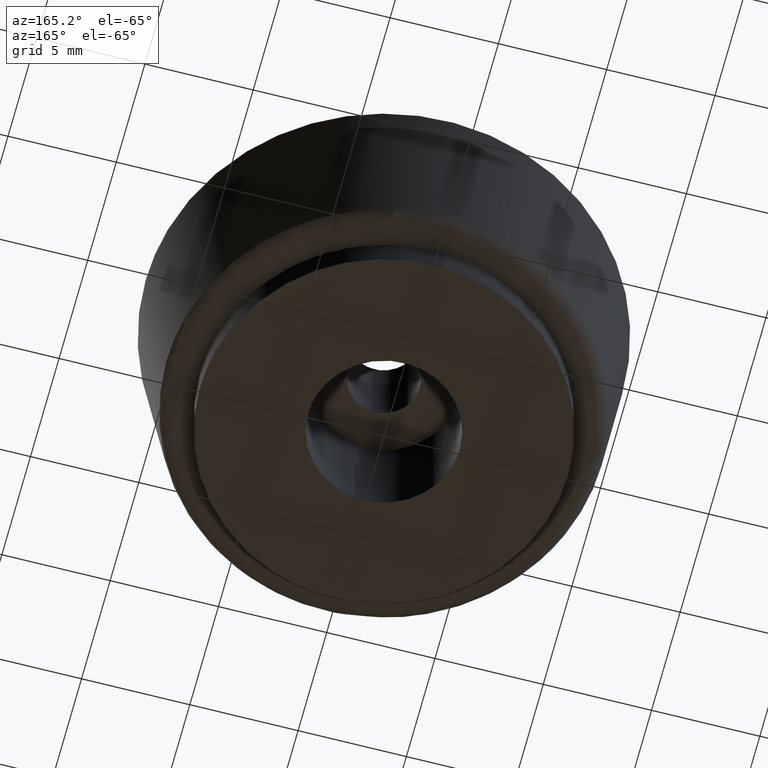
[diagram: clean part render]
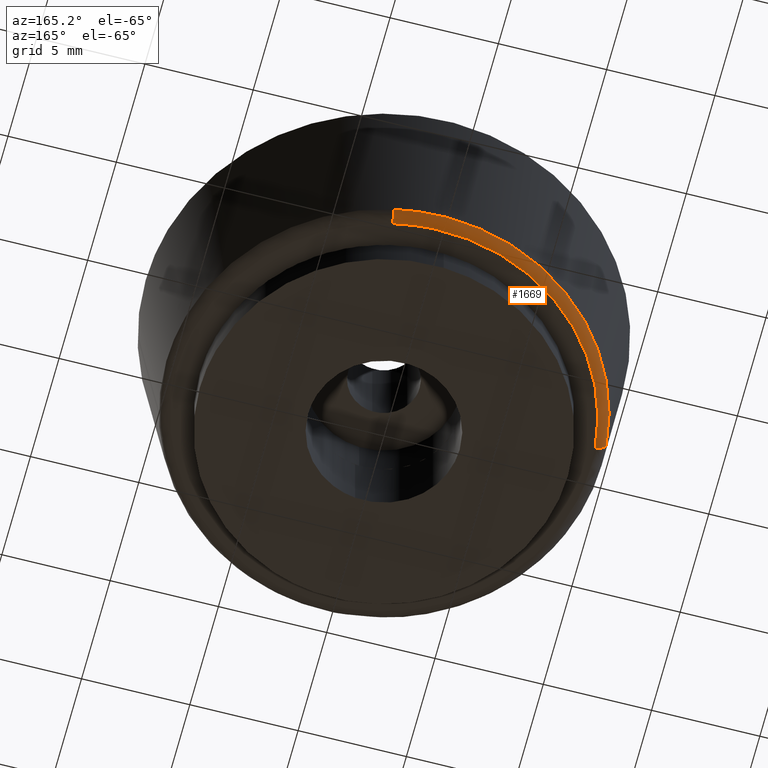
[diagram: same view with one face highlighted and labeled with its STEP entity id]
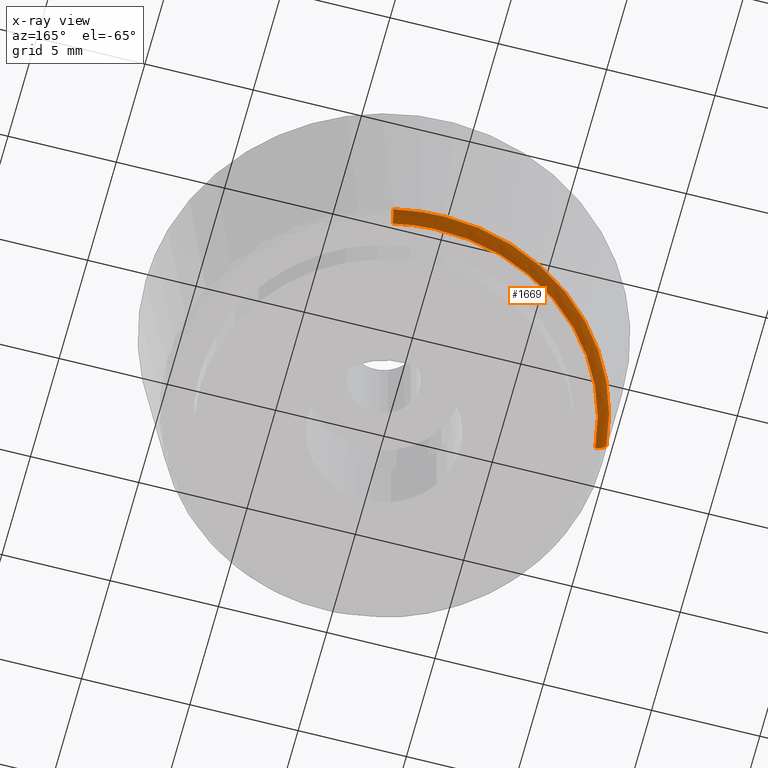
[diagram: x-ray of the same camera — body ghosted, the highlighted face saturated]
A machine part, auxiliary view. The second image highlights one B-rep face of the part: STEP entity #1669.
The next image is the same camera in x-ray: the body ghosted, the highlighted face saturated — about 0% of this face is hidden behind the body in this view.
In plain terms, the highlighted face is a freeform B-spline surface patch.
Its self-contained STEP definition (entity closure, byte-faithful):
#754=CARTESIAN_POINT('',(2.156864146160267,9.817822488429364,1.941578984947266));
#755=VERTEX_POINT('',#754);
#769=CARTESIAN_POINT('',(-10.001198001681949,1.008830952362776,1.941578984943587));
#770=VERTEX_POINT('',#769);
#771=CARTESIAN_POINT('',(-10.001198001681953,1.008830952362776,1.941578984943587));
#772=CARTESIAN_POINT('',(-9.089009314084562,10.051950000000000,1.941579000000000));
#773=CARTESIAN_POINT('',(0.0,10.051950000000000,1.941579000000000));
#774=CARTESIAN_POINT('',(1.091139338804793,10.051950000000001,1.941579000000000));
#775=CARTESIAN_POINT('',(2.156864146160267,9.817822488429364,1.941578984947266));
#783=(BOUNDED_CURVE()B_SPLINE_CURVE(2,(#771,#772,#773,#774,#775),.UNSPECIFIED.,.F.,.U.)B_SPLINE_CURVE_WITH_KNOTS((3,2,3),(0.017423441082142,0.250000000000000,0.286726879777729),.UNSPECIFIED.)CURVE()GEOMETRIC_REPRESENTATION_ITEM()RATIONAL_B_SPLINE_CURVE((0.962019632130325,0.727519612151968,1.0,0.956971783859705,0.926585904689289))REPRESENTATION_ITEM(''));
#784=EDGE_CURVE('',#770,#755,#783,.T.);
#1543=CARTESIAN_POINT('',(2.050313171089938,9.332813471472589,1.500000000000000));
#1544=VERTEX_POINT('',#1543);
#1560=CARTESIAN_POINT('',(2.156864146160267,9.817822488429366,1.941578984947267));
#1561=CARTESIAN_POINT('',(2.145716994206832,9.767081805793424,1.500000000206612));
#1562=CARTESIAN_POINT('',(2.050313171089938,9.332813471472589,1.500000000000001));
#1570=(BOUNDED_CURVE()B_SPLINE_CURVE(2,(#1560,#1561,#1562),.UNSPECIFIED.,.F.,.U.)B_SPLINE_CURVE_WITH_KNOTS((3,3),(-1.714492062520340,-0.281180891754478),.UNSPECIFIED.)CURVE()GEOMETRIC_REPRESENTATION_ITEM()RATIONAL_B_SPLINE_CURVE((0.853961394546888,0.638631693144534,0.855265455869376))REPRESENTATION_ITEM(''));
#1571=EDGE_CURVE('',#755,#1544,#1570,.T.);
#1578=CARTESIAN_POINT('',(-9.507130074880910,0.958993821183380,1.500000000000000));
#1579=VERTEX_POINT('',#1578);
#1580=CARTESIAN_POINT('',(-10.001198001681953,1.008830952362776,1.941578984943587));
#1581=CARTESIAN_POINT('',(-9.949509593928523,1.003617090422100,1.500000001781969));
#1582=CARTESIAN_POINT('',(-9.507130074880910,0.958993821183380,1.500000000000000));
#1590=(BOUNDED_CURVE()B_SPLINE_CURVE(2,(#1580,#1581,#1582),.UNSPECIFIED.,.F.,.U.)B_SPLINE_CURVE_WITH_KNOTS((3,3),(-1.714492062504368,-0.281180895578524),.UNSPECIFIED.)CURVE()GEOMETRIC_REPRESENTATION_ITEM()RATIONAL_B_SPLINE_CURVE((0.892437854733239,0.667406164203749,0.893800671213223))REPRESENTATION_ITEM(''));
#1591=EDGE_CURVE('',#770,#1579,#1590,.T.);
#1626=CARTESIAN_POINT('',(-10.003945405024432,1.009108085714991,1.974249519922615));
#1627=CARTESIAN_POINT('',(-8.994837319309442,11.013053490739424,1.974249519922615));
#1628=CARTESIAN_POINT('',(1.009108085714991,10.003945405024432,1.974249519922615));
#1629=CARTESIAN_POINT('',(1.588594351649334,9.945492039593084,1.974249519922616));
#1630=CARTESIAN_POINT('',(2.157455545418464,9.820519760425512,1.974249519922615));
#1631=CARTESIAN_POINT('',(-9.977964777609101,1.006487393564513,1.467893598271875));
#1632=CARTESIAN_POINT('',(-8.971477384044587,10.984452171173611,1.467893598271875));
#1633=CARTESIAN_POINT('',(1.006487393564512,9.977964777609101,1.467893598271875));
#1634=CARTESIAN_POINT('',(1.584468711585007,9.919663217795131,1.467893598271875));
#1635=CARTESIAN_POINT('',(2.151852551157569,9.795015496398600,1.467893598271875));
#1636=CARTESIAN_POINT('',(-9.474577179888692,0.955710177721933,1.501071621594034));
#1637=CARTESIAN_POINT('',(-8.518867002166758,10.430287357610625,1.501071621594033));
#1638=CARTESIAN_POINT('',(0.955710177721933,9.474577179888692,1.501071621594034));
#1639=CARTESIAN_POINT('',(1.504532380262434,9.419216929529330,1.501071621594033));
#1640=CARTESIAN_POINT('',(2.043291746372357,9.300857676616468,1.501071621594033));
#1648=(BOUNDED_SURFACE()B_SPLINE_SURFACE(2,2,((#1626,#1631,#1636),(#1627,#1632,#1637),(#1628,#1633,#1638),(#1629,#1634,#1639),(#1630,#1635,#1640)),.UNSPECIFIED.,.F.,.F.,.U.)B_SPLINE_SURFACE_WITH_KNOTS((3,2,3),(3,3),(0.0,16.659191430643091,17.991925474099101),(0.0,0.836615946369451),.UNSPECIFIED.)GEOMETRIC_REPRESENTATION_ITEM()RATIONAL_B_SPLINE_SURFACE(((0.916044852433646,0.643730946704019,0.917544110131372),(0.647741527026862,0.455186517674048,0.648801662311670),(0.916044852433646,0.643730946704019,0.917544110131372),(0.894580606871023,0.628647406766420,0.896044734809218),(0.876550637323235,0.615977230917271,0.877985256258064)))REPRESENTATION_ITEM('')SURFACE());
#1649=CARTESIAN_POINT('',(-9.507130074880910,0.958993821183380,1.500000000000001));
#1650=CARTESIAN_POINT('',(-8.640004414457508,9.555375000000000,1.500000000000000));
#1651=CARTESIAN_POINT('',(0.0,9.555375000000000,1.500000000000000));
#1652=CARTESIAN_POINT('',(1.037236114342107,9.555375000000000,1.500000000000000));
#1653=CARTESIAN_POINT('',(2.050313171089938,9.332813471472591,1.500000000000000));
#1661=(BOUNDED_CURVE()B_SPLINE_CURVE(2,(#1649,#1650,#1651,#1652,#1653),.UNSPECIFIED.,.F.,.U.)B_SPLINE_CURVE_WITH_KNOTS((3,2,3),(0.017423441083437,0.250000000000000,0.286726879777827),.UNSPECIFIED.)CURVE()GEOMETRIC_REPRESENTATION_ITEM()RATIONAL_B_SPLINE_CURVE((0.962019632127714,0.727519612153485,1.0,0.956971783859590,0.926585904689125))REPRESENTATION_ITEM(''));
#1662=EDGE_CURVE('',#1579,#1544,#1661,.T.);
#1663=ORIENTED_EDGE('',*,*,#1662,.F.);
#1664=ORIENTED_EDGE('',*,*,#1591,.F.);
#1665=ORIENTED_EDGE('',*,*,#784,.T.);
#1666=ORIENTED_EDGE('',*,*,#1571,.T.);
#1667=EDGE_LOOP('',(#1663,#1664,#1665,#1666));
#1668=FACE_OUTER_BOUND('',#1667,.T.);
#1669=ADVANCED_FACE('',(#1668),#1648,.T.);